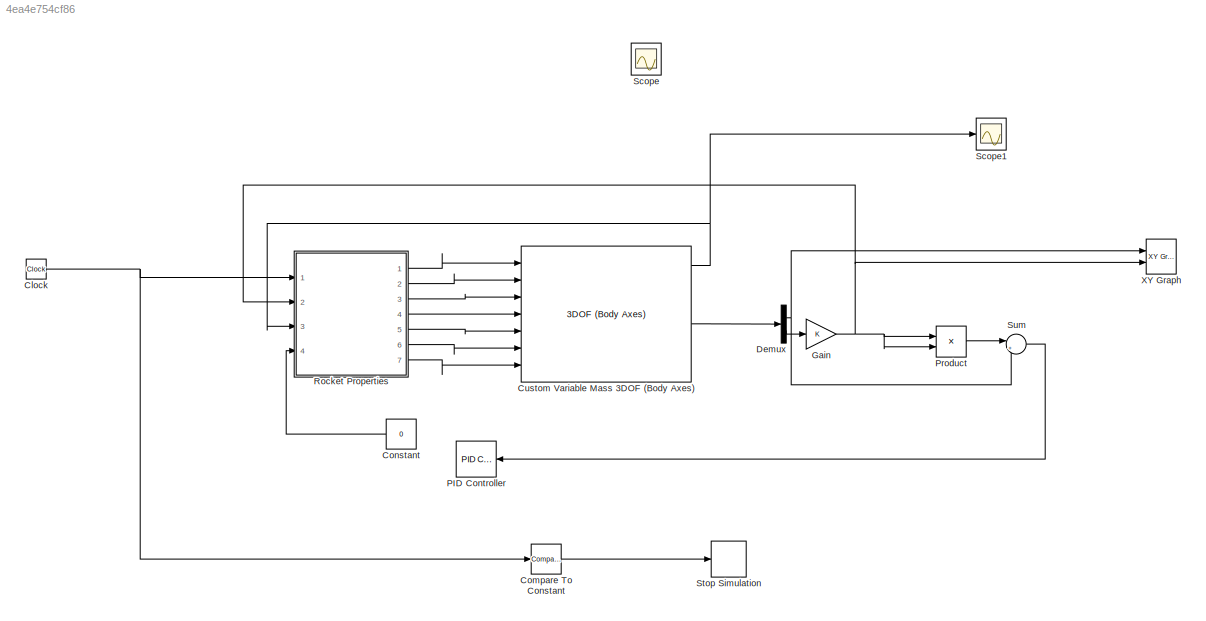
MODEL slx_4ea4e754cf86
KIND model
CONFIG AbsTol = auto
CONFIG EnableMultiTasking = off
CONFIG FixedStep = auto
CONFIG MaxStep = auto
CONFIG MinStep = auto
CONFIG RelTol = 1e-3
CONFIG SampleTimeConstraint = Unconstrained
CONFIG SolverName = VariableStepAuto
CONFIG StartTime = 0.0
CONFIG StopTime = 100
BLOCK [Clock] Clock
  DisplayTime = on
BLOCK [Reference] Compare To Constant  REF=simulink/Logic and Bit
Operations/Compare
To Constant
  Ports = [1, 1]
  SourceBlock = simulink/Logic and Bit\nOperations/Compare\nTo Constant
  SourceProductBaseCode = SL
  SourceType = Compare To Constant
BLOCK [Constant] Constant
  Value = 0
BLOCK [Reference] Custom Variable Mass 3DOF (Body Axes)  REF=shared3dof/3DOF (Body Axes)
  Ports = [7, 6]
  SourceBlock = shared3dof/3DOF (Body Axes)
  SourceProductBaseCode = AE,PW,MT,UV,VE,VP
  SourceType = 3DOF EoM
BLOCK [Demux] Demux
  Outputs = 2
  Ports = [1, 2]
BLOCK [Gain] Gain
BLOCK [Reference] PID Controller  REF=pid_lib/PID Controller
  Ports = [1, 1]
  SourceBlock = pid_lib/PID Controller
  SourceProductBaseCode = SL
  SourceType = PID 1dof
BLOCK [Product] Product
  Ports = [2, 1]
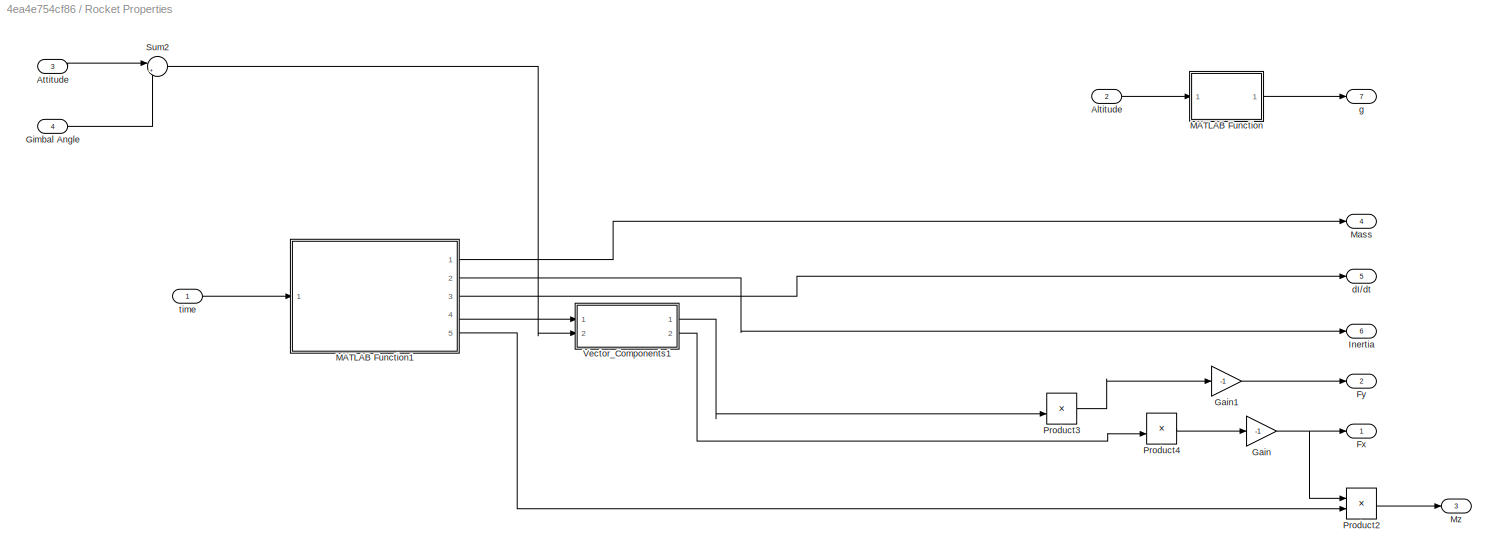
BLOCK [SubSystem] Rocket Properties
  Ports = [4, 7]
  RequestExecContextInheritance = off
BLOCK [Inport] Rocket Properties/Altitude
  Port = 2
BLOCK [Inport] Rocket Properties/Attitude
  Port = 3
BLOCK [Outport] Rocket Properties/Fx
BLOCK [Outport] Rocket Properties/Fy
  Port = 2
BLOCK [Gain] Rocket Properties/Gain
  Gain = -1
BLOCK [Gain] Rocket Properties/Gain1
  Gain = -1
BLOCK [Inport] Rocket Properties/Gimbal Angle
  Port = 4
BLOCK [Outport] Rocket Properties/Inertia
  Port = 6
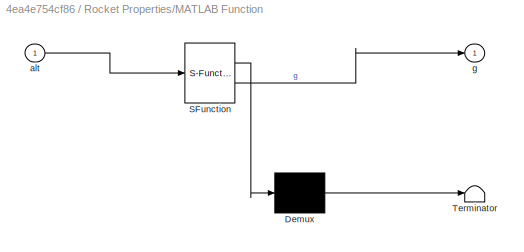
BLOCK [SubSystem] Rocket Properties/MATLAB Function
  ErrorFcn = Stateflow.Translate.translate
  PermitHierarchicalResolution = ExplicitOnly
  Ports = [1, 1]
  RequestExecContextInheritance = off
  SFBlockType = MATLAB Function
  TreatAsAtomicUnit = on
BLOCK [Demux] Rocket Properties/MATLAB Function/ Demux 
  Outputs = 1
  Ports = [1, 1]
BLOCK [S-Function] Rocket Properties/MATLAB Function/ SFunction 
  EnableBusSupport = on
  FunctionName = sf_sfun
  PortCounts = [1 2]
  Ports = [1, 2]
  SFcnIsStateOwnerBlock = off
  SFunctionDeploymentMode = off
  Tag = Stateflow S-Function 2
BLOCK [Terminator] Rocket Properties/MATLAB Function/ Terminator 
BLOCK [Inport] Rocket Properties/MATLAB Function/alt
BLOCK [Outport] Rocket Properties/MATLAB Function/g
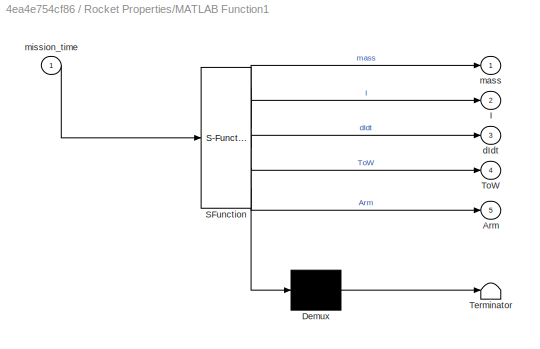
BLOCK [SubSystem] Rocket Properties/MATLAB Function1
  ErrorFcn = Stateflow.Translate.translate
  PermitHierarchicalResolution = ExplicitOnly
  Ports = [1, 5]
  RequestExecContextInheritance = off
  SFBlockType = MATLAB Function
  TreatAsAtomicUnit = on
BLOCK [Demux] Rocket Properties/MATLAB Function1/ Demux 
  Outputs = 1
  Ports = [1, 1]
BLOCK [S-Function] Rocket Properties/MATLAB Function1/ SFunction 
  EnableBusSupport = on
  FunctionName = sf_sfun
  PortCounts = [1 6]
  Ports = [1, 6]
  SFcnIsStateOwnerBlock = off
  SFunctionDeploymentMode = off
  Tag = Stateflow S-Function 1
BLOCK [Terminator] Rocket Properties/MATLAB Function1/ Terminator 
BLOCK [Outport] Rocket Properties/MATLAB Function1/Arm
  Port = 5
BLOCK [Outport] Rocket Properties/MATLAB Function1/I
  Port = 2
BLOCK [Outport] Rocket Properties/MATLAB Function1/ToW
  Port = 4
BLOCK [Outport] Rocket Properties/MATLAB Function1/dIdt
  Port = 3
BLOCK [Outport] Rocket Properties/MATLAB Function1/mass
BLOCK [Inport] Rocket Properties/MATLAB Function1/mission_time
BLOCK [Outport] Rocket Properties/Mass
  Port = 4
BLOCK [Outport] Rocket Properties/Mz
  Port = 3
BLOCK [Product] Rocket Properties/Product2
  Ports = [2, 1]
BLOCK [Product] Rocket Properties/Product3
  Ports = [2, 1]
BLOCK [Product] Rocket Properties/Product4
  Ports = [2, 1]
BLOCK [Sum] Rocket Properties/Sum2
  Inputs = |++
  Ports = [2, 1]
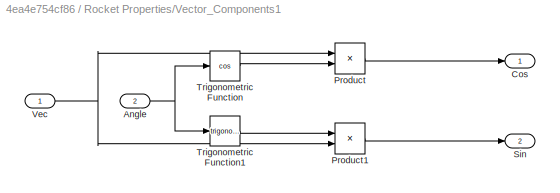
BLOCK [SubSystem] Rocket Properties/Vector_Components1
  Ports = [2, 2]
  RequestExecContextInheritance = off
BLOCK [Inport] Rocket Properties/Vector_Components1/Angle
  Port = 2
BLOCK [Outport] Rocket Properties/Vector_Components1/Cos
BLOCK [Product] Rocket Properties/Vector_Components1/Product
  Ports = [2, 1]
BLOCK [Product] Rocket Properties/Vector_Components1/Product1
  Ports = [2, 1]
BLOCK [Outport] Rocket Properties/Vector_Components1/Sin
  Port = 2
BLOCK [Trigonometry] Rocket Properties/Vector_Components1/Trigonometric Function
  Operator = cos
  Ports = [1, 1]
BLOCK [Trigonometry] Rocket Properties/Vector_Components1/Trigonometric Function1
  Ports = [1, 1]
BLOCK [Inport] Rocket Properties/Vector_Components1/Vec
BLOCK [Outport] Rocket Properties/dI//dt
  Port = 5
BLOCK [Outport] Rocket Properties/g
  Port = 7
BLOCK [Inport] Rocket Properties/time
BLOCK [Scope] Scope
  Floating = off
  NumInputPorts = 1
  Ports = [1]
  ScopeSpecificationString = Simulink.scopes.TimeScopeBlockCfg('CurrentConfiguration', extmgr.ConfigurationSet(extmgr.Configuration('Core','General UI',true),extmgr.Configuration('Core','Source UI',true),extmgr.Configuration('Sources','WiredSimulink',true),extmgr.Configuration('Visuals','Time Domain',true,'SerializedDisplays',{struct('MinYLimReal','9.65233','MaxYLimReal','9.83891','YLabelReal','','MinYLimMag','9.65233','MaxYL...<+1369ch>
BLOCK [Scope] Scope1
  Floating = off
  NumInputPorts = 1
  Ports = [1]
  ScopeSpecificationString = Simulink.scopes.TimeScopeBlockCfg('CurrentConfiguration', extmgr.ConfigurationSet(extmgr.Configuration('Core','General UI',true),extmgr.Configuration('Core','Source UI',true),extmgr.Configuration('Sources','WiredSimulink',true,'DataLoggingVariableName','ScopeData1'),extmgr.Configuration('Visuals','Time Domain',true,'SerializedDisplays',{struct('MinYLimReal','-1.00000','MaxYLimReal','1.00000','YLab...<+1430ch>
BLOCK [Stop] Stop Simulation
BLOCK [Sum] Sum
  Inputs = |+-
  Ports = [2, 1]
BLOCK [Reference] XY Graph  REF=simulink/Sinks/XY Graph
  Ports = [2]
  SourceBlock = simulink/Sinks/XY Graph
  SourceProductBaseCode = SL
  SourceType = XY scope.
NET Clock:1 -> Compare To Constant:1, Rocket Properties:1
LINE Compare To Constant:1 -> Stop Simulation:1
LINE Constant:1 -> Rocket Properties:4
NET Custom Variable Mass 3DOF (Body Axes):1 -> Rocket Properties:3, Scope1:1
LINE Custom Variable Mass 3DOF (Body Axes):4 -> Demux:1
NET Demux:1 -> Sum:2, XY Graph:1
LINE Demux:2 -> Gain:1
NET Gain:1 -> Product:1, Product:2, Rocket Properties:2, XY Graph:2
LINE Product:1 -> Sum:1
LINE Rocket Properties/Altitude:1 -> Rocket Properties/MATLAB Function:1
LINE Rocket Properties/Attitude:1 -> Rocket Properties/Sum2:1
LINE Rocket Properties/Gain1:1 -> Rocket Properties/Fy:1
NET Rocket Properties/Gain:1 -> Rocket Properties/Fx:1, Rocket Properties/Product2:1
LINE Rocket Properties/Gimbal Angle:1 -> Rocket Properties/Sum2:2
LINE Rocket Properties/MATLAB Function1:1 -> Rocket Properties/Mass:1
LINE Rocket Properties/MATLAB Function1:2 -> Rocket Properties/Inertia:1
LINE Rocket Properties/MATLAB Function1:3 -> Rocket Properties/dI//dt:1
LINE Rocket Properties/MATLAB Function1:4 -> Rocket Properties/Vector_Components1:1
LINE Rocket Properties/MATLAB Function1:5 -> Rocket Properties/Product2:2
LINE Rocket Properties/MATLAB Function:1 -> Rocket Properties/g:1
LINE Rocket Properties/Product2:1 -> Rocket Properties/Mz:1
LINE Rocket Properties/Product3:1 -> Rocket Properties/Gain1:1
LINE Rocket Properties/Product4:1 -> Rocket Properties/Gain:1
LINE Rocket Properties/Sum2:1 -> Rocket Properties/Vector_Components1:2
NET Rocket Properties/Vector_Components1/Angle:1 -> Rocket Properties/Vector_Components1/Trigonometric Function1:1, Rocket Properties/Vector_Components1/Trigonometric Function:1
LINE Rocket Properties/Vector_Components1/Product1:1 -> Rocket Properties/Vector_Components1/Sin:1
LINE Rocket Properties/Vector_Components1/Product:1 -> Rocket Properties/Vector_Components1/Cos:1
LINE Rocket Properties/Vector_Components1/Trigonometric Function1:1 -> Rocket Properties/Vector_Components1/Product1:1
LINE Rocket Properties/Vector_Components1/Trigonometric Function:1 -> Rocket Properties/Vector_Components1/Product:2
NET Rocket Properties/Vector_Components1/Vec:1 -> Rocket Properties/Vector_Components1/Product1:2, Rocket Properties/Vector_Components1/Product:1
LINE Rocket Properties/Vector_Components1:1 -> Rocket Properties/Product3:2
LINE Rocket Properties/Vector_Components1:2 -> Rocket Properties/Product4:2
LINE Rocket Properties/time:1 -> Rocket Properties/MATLAB Function1:1
LINE Rocket Properties:1 -> Custom Variable Mass 3DOF (Body Axes):1
LINE Rocket Properties:2 -> Custom Variable Mass 3DOF (Body Axes):2
LINE Rocket Properties:3 -> Custom Variable Mass 3DOF (Body Axes):3
LINE Rocket Properties:4 -> Custom Variable Mass 3DOF (Body Axes):4
LINE Rocket Properties:5 -> Custom Variable Mass 3DOF (Body Axes):5
LINE Rocket Properties:6 -> Custom Variable Mass 3DOF (Body Axes):6
LINE Rocket Properties:7 -> Custom Variable Mass 3DOF (Body Axes):7
LINE Sum:1 -> PID Controller:1
note: NET lines group one-source signal fan-out (src -> all destinations, sorted); 1:1 wires keep LINE
CHART Rocket Properties/MATLAB Function1 states=1 transitions=1
  STATE_LABEL 'eML_blk_kernel()'
  STATE_LABEL 'SCRIPT:\nfunction [mass,I,dIdt,ToW,Arm] = rocket_prop_eval(mission_time)\n\nL = [14.52 1.95 1.83];\n\ntbb = [114.8962  156.7683  261.4940];\n\nm0 = [1.1112e4    0.1664e4    0.0239e4];\n\nM0 = 1.3065e+04;\n\nm_dot = [69.2893    7.4443    0.5640];\n\nDiam = 0.83;\n\nthick = 0.001;\n\n\nif mission_time < tbb(1)\n        \n        m_dot_current = m_dot(1);\n        \n        mass = M0 - (m_dot(1)*mission_time);\n        \n  ...<+625ch>'
CHART Rocket Properties/MATLAB Function states=1 transitions=1
  STATE_LABEL 'eML_blk_kernel()'
  STATE_LABEL 'SCRIPT:\nfunction g = g_calc(alt)\n\nMu = 3.986004418e14;\nRe = 6.371e6;\n\nR = Re + alt;\n\ng = (Mu/(R^2));\n\nend\n'
CHART  states=0 transitions=0
CHART  states=0 transitions=0
